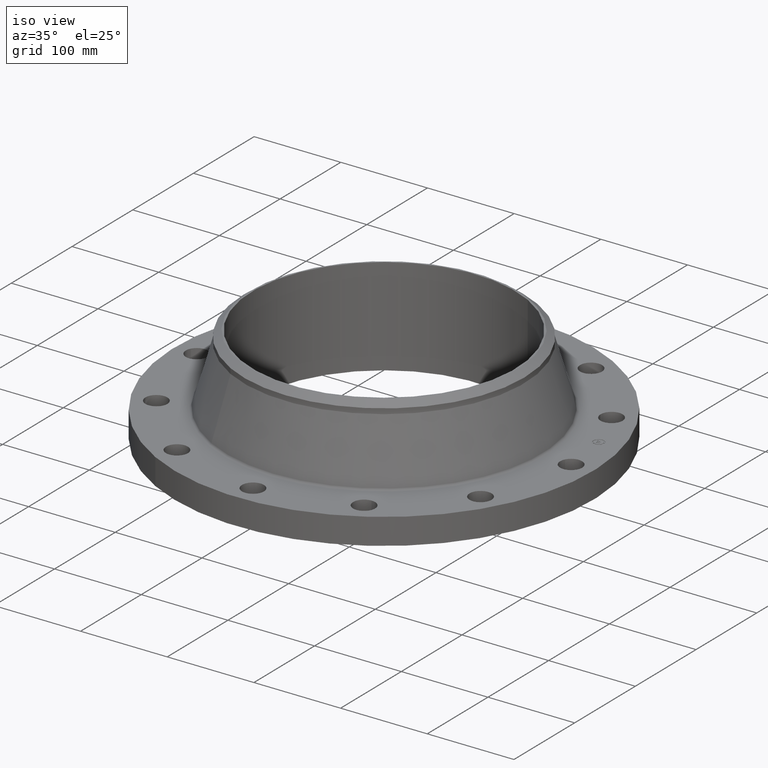
[diagram: clean part render]
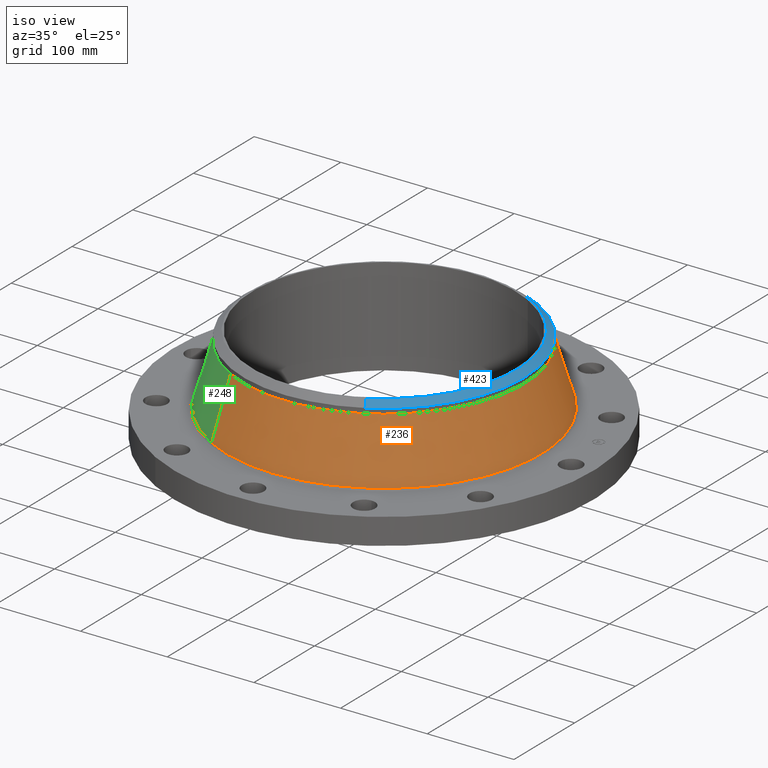
[diagram: same view with three faces highlighted in distinct colors, each labeled with its STEP entity id]
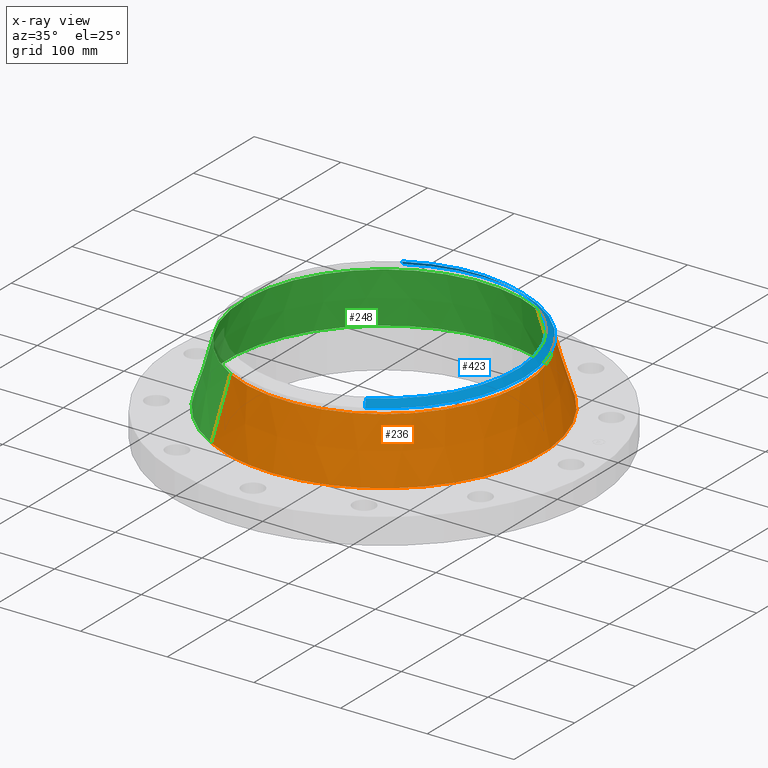
[diagram: x-ray of the same camera — body ghosted, the three highlighted faces saturated]
A machine part, iso view with three faces highlighted in distinct colors.
The next image is the same camera in x-ray (body ghosted, the three faces saturated) — at least one of them is partly hidden behind the body in this view.
Their STEP definitions:

[orange] entity #236 — the highlighted conical surface has half-angle 16.436 deg.
#172=AXIS2_PLACEMENT_3D('Circle Axis2P3D',#170,#171,$) ;
#209=AXIS2_PLACEMENT_3D('Cone Axis2P3D',#206,#207,#208) ;
#220=AXIS2_PLACEMENT_3D('Circle Axis2P3D',#218,#219,$) ;
#167=CARTESIAN_POINT('Vertex',(3.43489987481,6.28754204614,1.27604604364)) ;
#170=CARTESIAN_POINT('Axis2P3D Location',(0.,0.,1.27604604364)) ;
#174=CARTESIAN_POINT('Vertex',(-3.43489987481,-6.28754204614,1.27604604364)) ;
#206=CARTESIAN_POINT('Axis2P3D Location',(0.,0.,3.95266421833)) ;
#211=CARTESIAN_POINT('Line Origine',(3.24561884171,5.94106543911,2.61435513099)) ;
#215=CARTESIAN_POINT('Vertex',(3.05633780861,5.59458883207,3.95266421833)) ;
#218=CARTESIAN_POINT('Axis2P3D Location',(0.,0.,3.95266421833)) ;
#222=CARTESIAN_POINT('Vertex',(-3.05633780861,-5.59458883207,3.95266421833)) ;
#225=CARTESIAN_POINT('Line Origine',(-3.24561884171,-5.94106543911,2.61435513099)) ;
#171=DIRECTION('Axis2P3D Direction',(0.,0.,-0.0393700787402)) ;
#207=DIRECTION('Axis2P3D Direction',(0.,0.,-0.0393700787402)) ;
#208=DIRECTION('Axis2P3D XDirection',(-0.0188750212049,-0.0345504945626,0.)) ;
#212=DIRECTION('Vector Direction',(0.00534068038624,0.00977604987261,-0.0377612113406)) ;
#219=DIRECTION('Axis2P3D Direction',(0.,0.,-0.0393700787402)) ;
#226=DIRECTION('Vector Direction',(-0.00534068038624,-0.00977604987261,-0.0377612113406)) ;
#213=VECTOR('Line Direction',#212,0.0393700787402) ;
#227=VECTOR('Line Direction',#226,0.0393700787402) ;
#231=ORIENTED_EDGE('',*,*,#176,.F.) ;
#232=ORIENTED_EDGE('',*,*,#217,.T.) ;
#233=ORIENTED_EDGE('',*,*,#224,.T.) ;
#234=ORIENTED_EDGE('',*,*,#229,.F.) ;
#236=ADVANCED_FACE('PartBody',(#235),#210,.T.) ;
#173=CIRCLE('generated circle',#172,7.16461597938) ;
#221=CIRCLE('generated circle',#220,6.37500000003) ;
#210=CONICAL_SURFACE('Cone',#209,6.37500000003,0.286868029902) ;
#176=EDGE_CURVE('',#168,#175,#173,.T.) ;
#217=EDGE_CURVE('',#168,#216,#214,.F.) ;
#224=EDGE_CURVE('',#216,#223,#221,.T.) ;
#229=EDGE_CURVE('',#175,#223,#228,.F.) ;
#230=EDGE_LOOP('',(#231,#232,#233,#234)) ;
#235=FACE_OUTER_BOUND('',#230,.T.) ;
#214=LINE('Line',#211,#213) ;
#228=LINE('Line',#225,#227) ;
#168=VERTEX_POINT('',#167) ;
#175=VERTEX_POINT('',#174) ;
#216=VERTEX_POINT('',#215) ;
#223=VERTEX_POINT('',#222) ;

[blue] entity #423 — the highlighted conical surface has half-angle 52.5 deg.
#270=AXIS2_PLACEMENT_3D('Circle Axis2P3D',#268,#269,$) ;
#297=AXIS2_PLACEMENT_3D('Circle Axis2P3D',#295,#296,$) ;
#311=AXIS2_PLACEMENT_3D('Cone Axis2P3D',#308,#309,#310) ;
#404=AXIS2_PLACEMENT_3D('Circle Axis2P3D',#402,#403,$) ;
#265=CARTESIAN_POINT('Vertex',(3.05633780861,5.59458883207,4.18888469077)) ;
#268=CARTESIAN_POINT('Axis2P3D Location',(0.,0.,4.18888469077)) ;
#272=CARTESIAN_POINT('Vertex',(3.05633780861,-5.59458883207,4.18888469077)) ;
#292=CARTESIAN_POINT('Vertex',(-3.05633780861,5.59458883207,4.18888469077)) ;
#295=CARTESIAN_POINT('Axis2P3D Location',(0.,0.,4.18888469077)) ;
#308=CARTESIAN_POINT('Axis2P3D Location',(0.,0.,4.44000000002)) ;
#313=CARTESIAN_POINT('Line Origine',(2.97788944548,-5.45099006657,4.31444234539)) ;
#317=CARTESIAN_POINT('Vertex',(2.89944108235,-5.30739130107,4.44000000002)) ;
#324=CARTESIAN_POINT('Vertex',(-2.89944108235,5.30739130107,4.44000000002)) ;
#327=CARTESIAN_POINT('Line Origine',(-2.97788944548,5.45099006657,4.31444234539)) ;
#402=CARTESIAN_POINT('Axis2P3D Location',(0.,0.,4.44000000002)) ;
#269=DIRECTION('Axis2P3D Direction',(0.,0.,-0.0393700787402)) ;
#296=DIRECTION('Axis2P3D Direction',(0.,0.,-0.0393700787402)) ;
#309=DIRECTION('Axis2P3D Direction',(-0.,-0.,-0.0393700787402)) ;
#310=DIRECTION('Axis2P3D XDirection',(-0.0188750212049,0.0345504945626,0.)) ;
#314=DIRECTION('Vector Direction',(0.014974561121,-0.02741075027,-0.023966985394)) ;
#328=DIRECTION('Vector Direction',(-0.014974561121,0.02741075027,-0.023966985394)) ;
#403=DIRECTION('Axis2P3D Direction',(0.,0.,-0.0393700787402)) ;
#315=VECTOR('Line Direction',#314,0.0393700787402) ;
#329=VECTOR('Line Direction',#328,0.0393700787402) ;
#417=ORIENTED_EDGE('',*,*,#331,.F.) ;
#418=ORIENTED_EDGE('',*,*,#406,.F.) ;
#419=ORIENTED_EDGE('',*,*,#319,.T.) ;
#420=ORIENTED_EDGE('',*,*,#274,.T.) ;
#421=ORIENTED_EDGE('',*,*,#299,.F.) ;
#423=ADVANCED_FACE('PartBody',(#422),#312,.T.) ;
#271=CIRCLE('generated circle',#270,6.37500000003) ;
#298=CIRCLE('generated circle',#297,6.37500000003) ;
#405=CIRCLE('generated circle',#404,6.0477401575) ;
#312=CONICAL_SURFACE('Cone',#311,6.0477401575,0.916297857297) ;
#274=EDGE_CURVE('',#273,#266,#271,.F.) ;
#299=EDGE_CURVE('',#293,#266,#298,.T.) ;
#319=EDGE_CURVE('',#318,#273,#316,.T.) ;
#331=EDGE_CURVE('',#325,#293,#330,.T.) ;
#406=EDGE_CURVE('',#318,#325,#405,.F.) ;
#416=EDGE_LOOP('',(#417,#418,#419,#420,#421)) ;
#422=FACE_OUTER_BOUND('',#416,.T.) ;
#316=LINE('Line',#313,#315) ;
#330=LINE('Line',#327,#329) ;
#266=VERTEX_POINT('',#265) ;
#273=VERTEX_POINT('',#272) ;
#293=VERTEX_POINT('',#292) ;
#318=VERTEX_POINT('',#317) ;
#325=VERTEX_POINT('',#324) ;

[green] entity #248 — the highlighted conical surface has half-angle 16.436 deg.
#196=AXIS2_PLACEMENT_3D('Circle Axis2P3D',#194,#195,$) ;
#209=AXIS2_PLACEMENT_3D('Cone Axis2P3D',#206,#207,#208) ;
#239=AXIS2_PLACEMENT_3D('Circle Axis2P3D',#237,#238,$) ;
#167=CARTESIAN_POINT('Vertex',(3.43489987481,6.28754204614,1.27604604364)) ;
#174=CARTESIAN_POINT('Vertex',(-3.43489987481,-6.28754204614,1.27604604364)) ;
#194=CARTESIAN_POINT('Axis2P3D Location',(0.,0.,1.27604604364)) ;
#206=CARTESIAN_POINT('Axis2P3D Location',(0.,0.,3.95266421833)) ;
#211=CARTESIAN_POINT('Line Origine',(3.24561884171,5.94106543911,2.61435513099)) ;
#215=CARTESIAN_POINT('Vertex',(3.05633780861,5.59458883207,3.95266421833)) ;
#222=CARTESIAN_POINT('Vertex',(-3.05633780861,-5.59458883207,3.95266421833)) ;
#225=CARTESIAN_POINT('Line Origine',(-3.24561884171,-5.94106543911,2.61435513099)) ;
#237=CARTESIAN_POINT('Axis2P3D Location',(0.,0.,3.95266421833)) ;
#195=DIRECTION('Axis2P3D Direction',(0.,0.,-0.0393700787402)) ;
#207=DIRECTION('Axis2P3D Direction',(0.,0.,-0.0393700787402)) ;
#208=DIRECTION('Axis2P3D XDirection',(-0.0188750212049,-0.0345504945626,0.)) ;
#212=DIRECTION('Vector Direction',(0.00534068038624,0.00977604987261,-0.0377612113406)) ;
#226=DIRECTION('Vector Direction',(-0.00534068038624,-0.00977604987261,-0.0377612113406)) ;
#238=DIRECTION('Axis2P3D Direction',(0.,0.,-0.0393700787402)) ;
#213=VECTOR('Line Direction',#212,0.0393700787402) ;
#227=VECTOR('Line Direction',#226,0.0393700787402) ;
#243=ORIENTED_EDGE('',*,*,#198,.F.) ;
#244=ORIENTED_EDGE('',*,*,#229,.T.) ;
#245=ORIENTED_EDGE('',*,*,#241,.T.) ;
#246=ORIENTED_EDGE('',*,*,#217,.F.) ;
#248=ADVANCED_FACE('PartBody',(#247),#210,.T.) ;
#197=CIRCLE('generated circle',#196,7.16461597938) ;
#240=CIRCLE('generated circle',#239,6.37500000003) ;
#210=CONICAL_SURFACE('Cone',#209,6.37500000003,0.286868029902) ;
#198=EDGE_CURVE('',#175,#168,#197,.T.) ;
#217=EDGE_CURVE('',#168,#216,#214,.F.) ;
#229=EDGE_CURVE('',#175,#223,#228,.F.) ;
#241=EDGE_CURVE('',#223,#216,#240,.T.) ;
#242=EDGE_LOOP('',(#243,#244,#245,#246)) ;
#247=FACE_OUTER_BOUND('',#242,.T.) ;
#214=LINE('Line',#211,#213) ;
#228=LINE('Line',#225,#227) ;
#168=VERTEX_POINT('',#167) ;
#175=VERTEX_POINT('',#174) ;
#216=VERTEX_POINT('',#215) ;
#223=VERTEX_POINT('',#222) ;